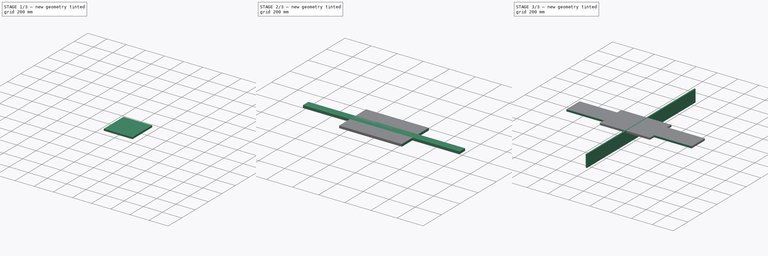
[diagram: build sequence overview — one tinted view per stage of 3, left to right]
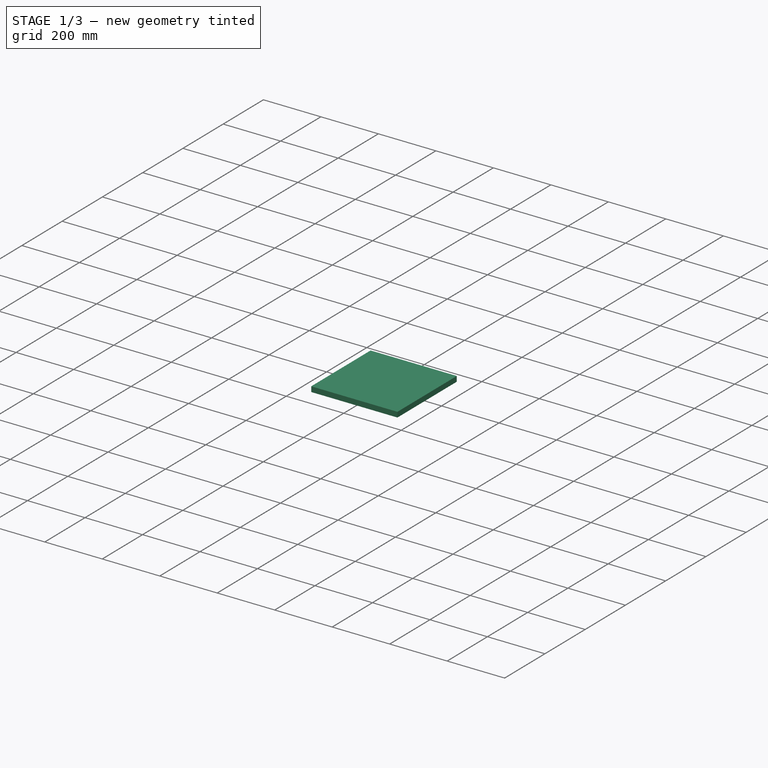
[diagram: stage 1 of 3 — iso view after this stage's code; geometry added in this stage tinted green]
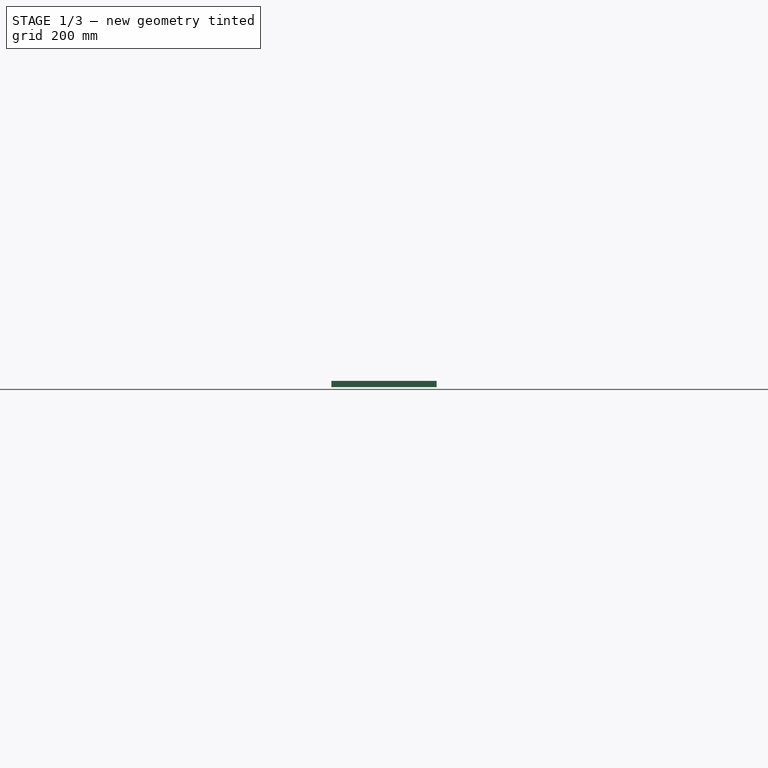
[diagram: stage 1 of 3 — front view after this stage's code; geometry added in this stage tinted green]
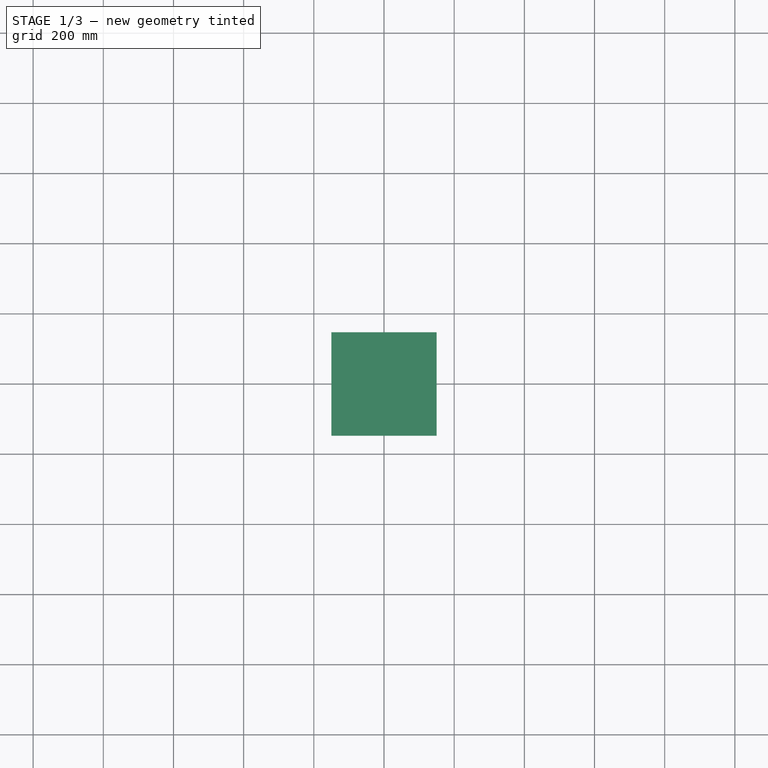
[diagram: stage 1 of 3 — top view after this stage's code; geometry added in this stage tinted green]
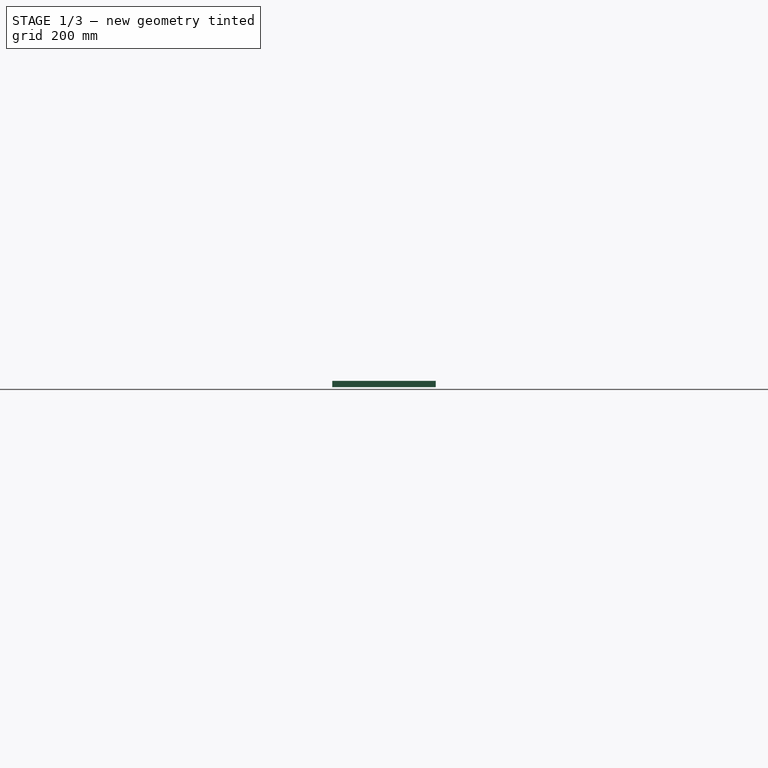
[diagram: stage 1 of 3 — right view after this stage's code; geometry added in this stage tinted green]
FCSTD DOCUMENT  (FreeCAD 0.19R24291 (Git))
Label: Scoreboard
License: All rights reserved
LicenseURL: http://en.wikipedia.org/wiki/All_rights_reserved
objects: App::Link×18, App::DocumentObjectGroup×8, Sketcher::SketchObject×6, PartDesign::Pad×6, PartDesign::Body×6, PartDesign::CoordinateSystem×1, App::FeaturePython×1, Part::Part2DObjectPython×1, Spreadsheet::Sheet×1, App::Part×1
note: 26 computed .brp shape members not serialized (recipe doc carries the construction recipe); baked Part::Feature solids carry a one-line shape summary decoded from their .brp
EXTERNAL_REF file=../DIGIT/7SegDigit.FCStd obj=Assembly

FEATURE [PartDesign::Body] Body003  label="PanelMiddle"
  Group = -> [Sketch003,Pad003]
  Origin = -> Origin006
  Placement = pos=(180,0,0) rot=(0,0,1;0rad)
  Tip = -> Pad003
  expr: .Placement.Base.x = Spreadsheet.Width / 2 - Spreadsheet.DigitWidth - (Spreadsheet.Width - 4 * Spreadsheet.DigitWidth) / 2
FEATURE [Sketcher::SketchObject] Sketch004
  FullyConstrained = true
  MapMode = 5
  Support = -> [XY_Plane007]
  expr: Constraints[9] = Spreadsheet.Width - 6 * Spreadsheet.DigitWidth
  expr: Constraints[10] = Spreadsheet.DigitHeigth
  sketch-geometry (4):
    g0: LineSegment StartX=-60 StartY=147.5 StartZ=0 EndX=60 EndY=147.5 EndZ=0
    g1: LineSegment StartX=60 StartY=147.5 StartZ=0 EndX=60 EndY=-147.5 EndZ=0
    g2: LineSegment StartX=60 StartY=-147.5 StartZ=0 EndX=-60 EndY=-147.5 EndZ=0
    g3: LineSegment StartX=-60 StartY=-147.5 StartZ=0 EndX=-60 EndY=147.5 EndZ=0
  constraints (11):
    c: Coincident(g0,g1)
    c: Coincident(g1,g2)
    c: Coincident(g2,g3)
    c: Coincident(g3,g0)
    c: Horizontal(g0)
    c: Horizontal(g2)
    c: Vertical(g1)
    c: Vertical(g3)
    c: Symmetric(g0,g1,g-1)
    c: DistanceX(g0,g0) = 120
    c: DistanceY(g1,g1) = 295
FEATURE [PartDesign::Pad] Pad004
  Direction = (1,1,1)
  Length = 18
  Length2 = 100
  Profile = -> Sketch004
  Type = 0
FEATURE [PartDesign::Body] Body004  label="PanelTop"
  Group = -> [Sketch004,Pad004]
  Origin = -> Origin007
  Placement = pos=(0,475,0) rot=(0,0,1;0rad)
  Tip = -> Pad004
  expr: .Placement.Base.y = Spreadsheet.DigitHeigth + Spreadsheet.TitleBarHeight
FEATURE [Sketcher::SketchObject] Sketch005
  FullyConstrained = true
  MapMode = 5
  Support = -> [XY_Plane009]
  expr: Constraints[9] = Spreadsheet.DigitHeigth
  expr: Constraints[10] = Spreadsheet.Width - 5 * Spreadsheet.DigitWidth
  sketch-geometry (4):
    g0: LineSegment StartX=-150 StartY=147.5 StartZ=0 EndX=150 EndY=147.5 EndZ=0
    g1: LineSegment StartX=150 StartY=147.5 StartZ=0 EndX=150 EndY=-147.5 EndZ=0
    g2: LineSegment StartX=150 StartY=-147.5 StartZ=0 EndX=-150 EndY=-147.5 EndZ=0
    g3: LineSegment StartX=-150 StartY=-147.5 StartZ=0 EndX=-150 EndY=147.5 EndZ=0
  constraints (11):
    c: Coincident(g0,g1)
    c: Coincident(g1,g2)
    c: Coincident(g2,g3)
    c: Coincident(g3,g0)
    c: Horizontal(g0)
    c: Horizontal(g2)
    c: Vertical(g1)
    c: Vertical(g3)
    c: Symmetric(g0,g1,g-1)
    c: DistanceY(g1,g1) = 295
    c: DistanceX(g0,g0) = 300
FEATURE [PartDesign::Pad] Pad005
  Direction = (1,1,1)
  Length = 18
  Length2 = 100
  Profile = -> Sketch005
  Type = 0
FEATURE [PartDesign::Body] Body006  label="PanelBottom"
  Group = -> [Sketch005,Pad005]
  Origin = -> Origin009
  Placement = pos=(-90,-475,0) rot=(0,0,1;0rad)
  Tip = -> Pad005
  expr: .Placement.Base.y = 0 - Spreadsheet.DigitHeigth - Spreadsheet.TitleBarHeight
  expr: .Placement.Base.x = Spreadsheet.Width / 2 - Spreadsheet.DigitWidth * 3 - (Spreadsheet.Width - 5 * Spreadsheet.DigitWidth) / 2
FEATURE [App::DocumentObjectGroup] Group002  label="Sides"
  Group = -> [Body,Link017]
FEATURE [App::DocumentObjectGroup] Group003  label="Bars"
  Group = -> [Link011,Body001,Body002,Link004]
FEATURE [App::DocumentObjectGroup] Group004  label="Panels"
  Group = -> [Body003,Body004,Body006]
FEATURE [App::DocumentObjectGroup] Group001  label="Frame"
  Group = -> [Group002,Group003,Group004]
FEATURE [App::Part] Assembly
  AssemblyType = Part::Link
  Group = -> [LCS_Origin,Variables,Constraints,Configurations,Link002,Link001,Link008,Link003,Link009,Link007,Link,Link005,Link006,Link010,Link016,Link015,Link013,Link012,Link014,Group,Group001,Body,Link017,Group002,Body001,Link004,Body002,Link011,Group003,Body004,Body003,Body006,Group004]
  Origin = -> Origin
  Type = Assembly

RESOLVED EXTERNAL PARTS (link-assembly join: the EXTERNAL_REF files above that resolve inside this repo's crawl, each included once):
---- part ../DIGIT/7SegDigit.FCStd = doc fcstd_d8d09d8c090b (89591 chars; too large to inline — full recipe in that document) ----
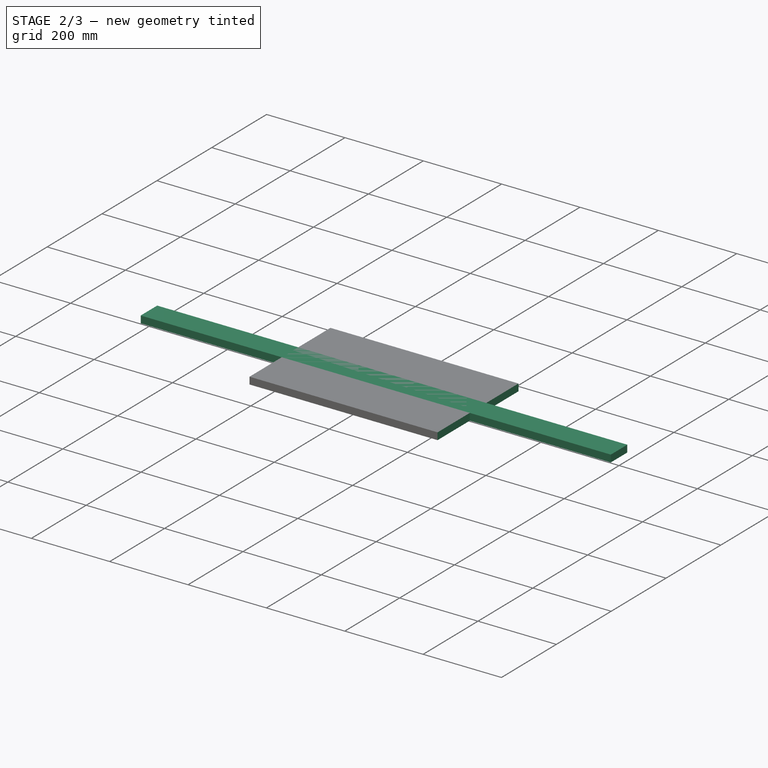
[diagram: stage 2 of 3 — iso view after this stage's code; geometry added in this stage tinted green]
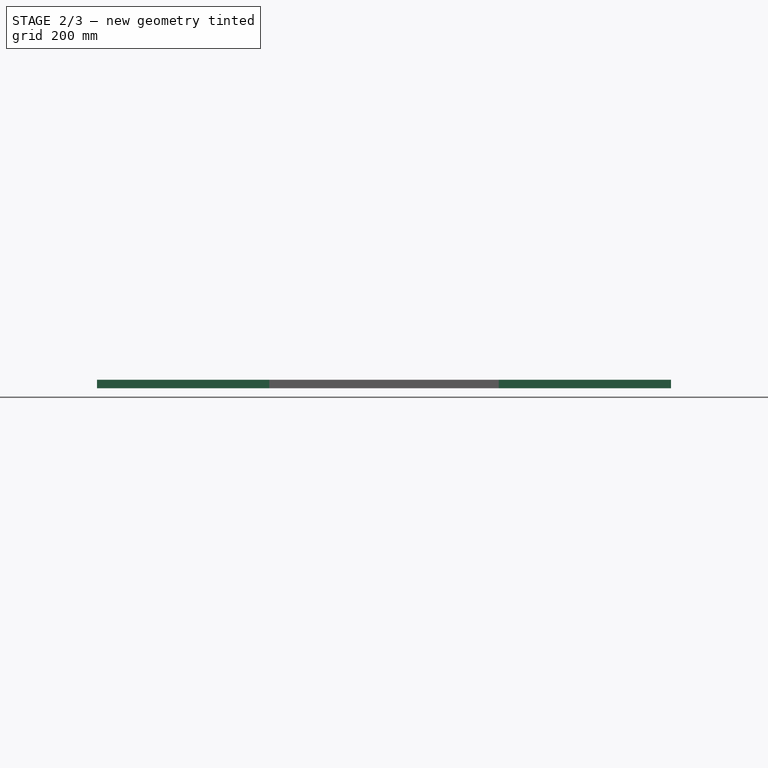
[diagram: stage 2 of 3 — front view after this stage's code; geometry added in this stage tinted green]
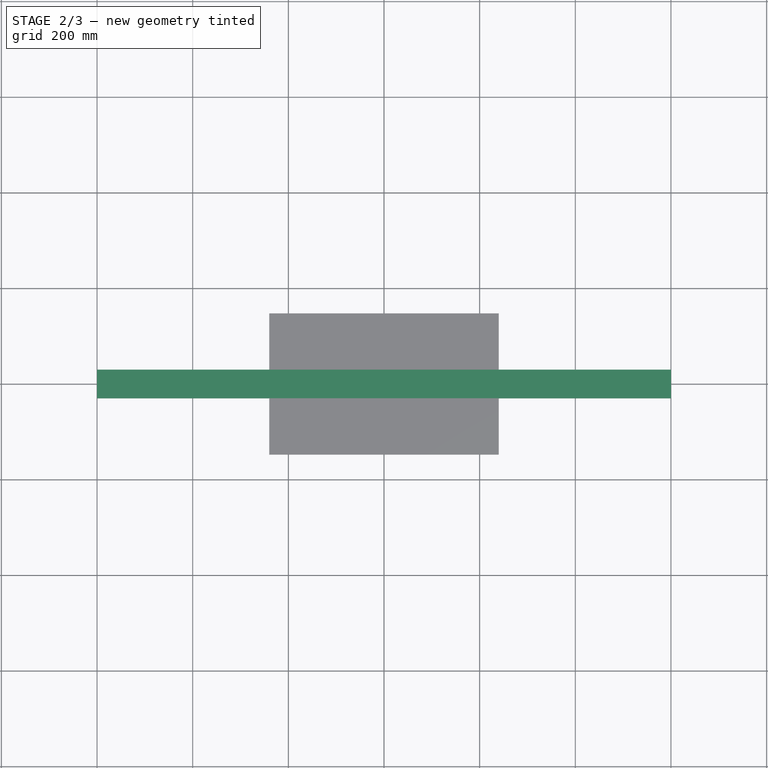
[diagram: stage 2 of 3 — top view after this stage's code; geometry added in this stage tinted green]
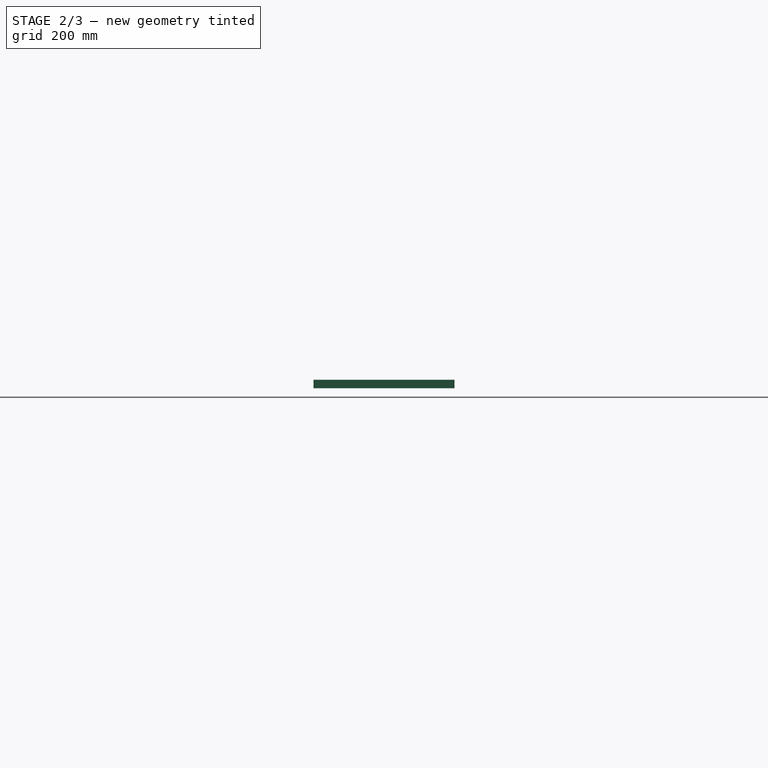
[diagram: stage 2 of 3 — right view after this stage's code; geometry added in this stage tinted green]
FEATURE [PartDesign::Body] Body001  label="TitleBarMiddle"
  Group = -> [Sketch001,Pad001]
  Origin = -> Origin003
  Placement = pos=(0,237.5,0) rot=(0,0,1;0rad)
  Tip = -> Pad001
  expr: .Placement.Base.y = Spreadsheet.DigitHeigth / 2 + Spreadsheet.TitleBarHeight / 2
FEATURE [App::Link] Link003  label="Digit003"
  LinkPlacement = pos=(510,0,0) rot=(0,0,1;0rad)
  LinkedObject = -> Link
  Placement = pos=(510,0,0) rot=(0,0,1;0rad)
  expr: .Placement.Base.x = Spreadsheet.Width / 2 - Spreadsheet.DigitWidth / 2
FEATURE [App::Link] Link004  label="TitleBarLower"
  LinkPlacement = pos=(0,-237.5,0) rot=(0,0,1;0rad)
  LinkedObject = -> Body001
  Placement = pos=(0,-237.5,0) rot=(0,0,1;0rad)
  expr: .Placement.Base.y = 0 - Spreadsheet.DigitHeigth / 2 - Spreadsheet.TitleBarHeight / 2
FEATURE [App::Link] Link005  label="Digit004"
  LinkPlacement = pos=(-510,475,0) rot=(0,0,1;0rad)
  LinkedObject = -> Link
  Placement = pos=(-510,475,0) rot=(0,0,1;0rad)
  expr: .Placement.Base.x = Spreadsheet.DigitWidth / 2 - Spreadsheet.Width / 2
  expr: .Placement.Base.y = Spreadsheet.DigitHeigth + Spreadsheet.TitleBarHeight
FEATURE [App::Link] Link006  label="Digit005"
  LinkPlacement = pos=(-330,475,0) rot=(0,0,1;0rad)
  LinkedObject = -> Link
  Placement = pos=(-330,475,0) rot=(0,0,1;0rad)
  expr: .Placement.Base.x = Spreadsheet.DigitWidth * 1.5 - Spreadsheet.Width / 2
  expr: .Placement.Base.y = Spreadsheet.DigitHeigth + Spreadsheet.TitleBarHeight
FEATURE [App::Link] Link007  label="Digit006"
  LinkPlacement = pos=(-150,475,0) rot=(0,0,1;0rad)
  LinkedObject = -> Link
  Placement = pos=(-150,475,0) rot=(0,0,1;0rad)
  expr: .Placement.Base.x = Spreadsheet.DigitWidth * 2.5 - Spreadsheet.Width / 2
  expr: .Placement.Base.y = Spreadsheet.DigitHeigth + Spreadsheet.TitleBarHeight
FEATURE [App::Link] Link008  label="Digit007"
  LinkPlacement = pos=(510,475,0) rot=(0,0,1;0rad)
  LinkedObject = -> Link
  Placement = pos=(510,475,0) rot=(0,0,1;0rad)
  expr: .Placement.Base.x = Spreadsheet.Width / 2 - Spreadsheet.DigitWidth / 2
  expr: .Placement.Base.y = Spreadsheet.DigitHeigth + Spreadsheet.TitleBarHeight
FEATURE [App::Link] Link009  label="Digit008"
  LinkPlacement = pos=(330,475,0) rot=(0,0,1;0rad)
  LinkedObject = -> Link
  Placement = pos=(330,475,0) rot=(0,0,1;0rad)
  expr: .Placement.Base.y = Spreadsheet.DigitHeigth + Spreadsheet.TitleBarHeight
  expr: .Placement.Base.x = Spreadsheet.Width / 2 - Spreadsheet.DigitWidth * 1.5
FEATURE [App::Link] Link010  label="Digit009"
  LinkPlacement = pos=(150,475,0) rot=(0,0,1;0rad)
  LinkedObject = -> Link
  Placement = pos=(150,475,0) rot=(0,0,1;0rad)
  expr: .Placement.Base.y = Spreadsheet.DigitHeigth + Spreadsheet.TitleBarHeight
  expr: .Placement.Base.x = Spreadsheet.Width / 2 - 2.5 * Spreadsheet.DigitWidth
FEATURE [App::Link] Link011  label="TitleBarTop"
  LinkPlacement = pos=(0,712.5,0) rot=(0,0,1;0rad)
  LinkedObject = -> Body001
  Placement = pos=(0,712.5,0) rot=(0,0,1;0rad)
  expr: .Placement.Base.y = Spreadsheet.TitleBarHeight * 1.5 + Spreadsheet.DigitHeigth * 1.5
FEATURE [App::Link] Link012  label="Digit010"
  LinkPlacement = pos=(-510,-475,0) rot=(0,0,1;0rad)
  LinkedObject = -> Link
  Placement = pos=(-510,-475,0) rot=(0,0,1;0rad)
  expr: .Placement.Base.y = 0 - Spreadsheet.TitleBarHeight - Spreadsheet.DigitHeigth
  expr: .Placement.Base.x = Spreadsheet.DigitWidth / 2 - Spreadsheet.Width / 2
FEATURE [App::Link] Link013  label="Digit011"
  LinkPlacement = pos=(-330,-475,0) rot=(0,0,1;0rad)
  LinkedObject = -> Link
  Placement = pos=(-330,-475,0) rot=(0,0,1;0rad)
  expr: .Placement.Base.y = 0 - Spreadsheet.TitleBarHeight - Spreadsheet.DigitHeigth
  expr: .Placement.Base.x = Spreadsheet.DigitWidth * 1.5 - Spreadsheet.Width / 2
FEATURE [App::Link] Link014  label="Digit012"
  LinkPlacement = pos=(510,-475,0) rot=(0,0,1;0rad)
  LinkedObject = -> Link
  Placement = pos=(510,-475,0) rot=(0,0,1;0rad)
  expr: .Placement.Base.y = 0 - Spreadsheet.TitleBarHeight - Spreadsheet.DigitHeigth
  expr: .Placement.Base.x = Spreadsheet.Width / 2 - Spreadsheet.DigitWidth * 0.5
FEATURE [App::Link] Link015  label="Digit013"
  LinkPlacement = pos=(330,-475,0) rot=(0,0,1;0rad)
  LinkedObject = -> Link
  Placement = pos=(330,-475,0) rot=(0,0,1;0rad)
  expr: .Placement.Base.y = 0 - Spreadsheet.TitleBarHeight - Spreadsheet.DigitHeigth
  expr: .Placement.Base.x = Spreadsheet.Width / 2 - Spreadsheet.DigitWidth * 1.5
FEATURE [App::Link] Link016  label="Digit014"
  LinkPlacement = pos=(150,-475,0) rot=(0,0,1;0rad)
  LinkedObject = -> Link
  Placement = pos=(150,-475,0) rot=(0,0,1;0rad)
  expr: .Placement.Base.x = Spreadsheet.Width / 2 - Spreadsheet.DigitWidth * 2.5
  expr: .Placement.Base.y = 0 - Spreadsheet.TitleBarHeight - Spreadsheet.DigitHeigth
FEATURE [Sketcher::SketchObject] Sketch002
  FullyConstrained = true
  MapMode = 5
  Support = -> [XY_Plane004]
  expr: Constraints[9] = Spreadsheet.Width
  expr: Constraints[10] = Spreadsheet.BottomBarHeight
  sketch-geometry (4):
    g0: LineSegment StartX=-600 StartY=30 StartZ=0 EndX=600 EndY=30 EndZ=0
    g1: LineSegment StartX=600 StartY=30 StartZ=0 EndX=600 EndY=-30 EndZ=0
    g2: LineSegment StartX=600 StartY=-30 StartZ=0 EndX=-600 EndY=-30 EndZ=0
    g3: LineSegment StartX=-600 StartY=-30 StartZ=0 EndX=-600 EndY=30 EndZ=0
  constraints (11):
    c: Coincident(g0,g1)
    c: Coincident(g1,g2)
    c: Coincident(g2,g3)
    c: Coincident(g3,g0)
    c: Horizontal(g0)
    c: Horizontal(g2)
    c: Vertical(g1)
    c: Vertical(g3)
    c: Symmetric(g1,g0,g-1)
    c: DistanceX(g0,g0) = 1200
    c: DistanceY(g1,g1) = 60
FEATURE [PartDesign::Pad] Pad002
  Direction = (1,1,1)
  Length = 18
  Length2 = 100
  Profile = -> Sketch002
  Type = 0
FEATURE [PartDesign::Body] Body  label="SideLeft"
  Group = -> [Sketch,Pad]
  Origin = -> Origin005
  Placement = pos=(-612,0,0) rot=(0,0,1;0rad)
  Tip = -> Pad
  expr: .Placement.Base.x = -Spreadsheet.Width / 2 - 12
FEATURE [App::Link] Link017  label="SideRigth"
  LinkPlacement = pos=(600,0,0) rot=(0,0,1;0rad)
  LinkedObject = -> Body
  Placement = pos=(600,0,0) rot=(0,0,1;0rad)
  expr: .Placement.Base.x = Spreadsheet.Width / 2
FEATURE [App::DocumentObjectGroup] Group  label="Digits"
  Group = -> [Link,Link001,Link002,Link003,Link005,Link006,Link007,Link008,Link009,Link010,Link012,Link013,Link014,Link015,Link016]
FEATURE [Sketcher::SketchObject] Sketch003
  FullyConstrained = true
  MapMode = 5
  Support = -> [XY_Plane006]
  expr: Constraints[9] = Spreadsheet.Width - Spreadsheet.DigitWidth * 4
  expr: Constraints[10] = Spreadsheet.DigitHeigth
  sketch-geometry (4):
    g0: LineSegment StartX=-240 StartY=147.5 StartZ=0 EndX=240 EndY=147.5 EndZ=0
    g1: LineSegment StartX=240 StartY=147.5 StartZ=0 EndX=240 EndY=-147.5 EndZ=0
    g2: LineSegment StartX=240 StartY=-147.5 StartZ=0 EndX=-240 EndY=-147.5 EndZ=0
    g3: LineSegment StartX=-240 StartY=-147.5 StartZ=0 EndX=-240 EndY=147.5 EndZ=0
  constraints (11):
    c: Coincident(g0,g1)
    c: Coincident(g1,g2)
    c: Coincident(g2,g3)
    c: Coincident(g3,g0)
    c: Horizontal(g0)
    c: Horizontal(g2)
    c: Vertical(g1)
    c: Vertical(g3)
    c: Symmetric(g0,g1,g-1)
    c: DistanceX(g0,g0) = 480
    c: DistanceY(g1,g1) = 295
FEATURE [PartDesign::Pad] Pad003
  Direction = (1,1,1)
  Length = 18
  Length2 = 100
  Profile = -> Sketch003
  Type = 0
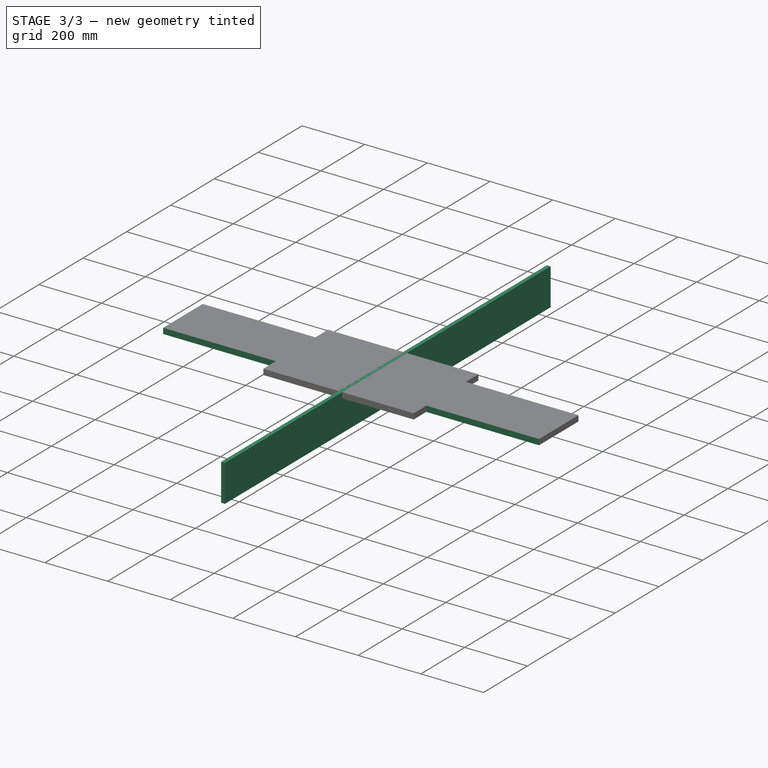
[diagram: stage 3 of 3 — iso view after this stage's code; geometry added in this stage tinted green]
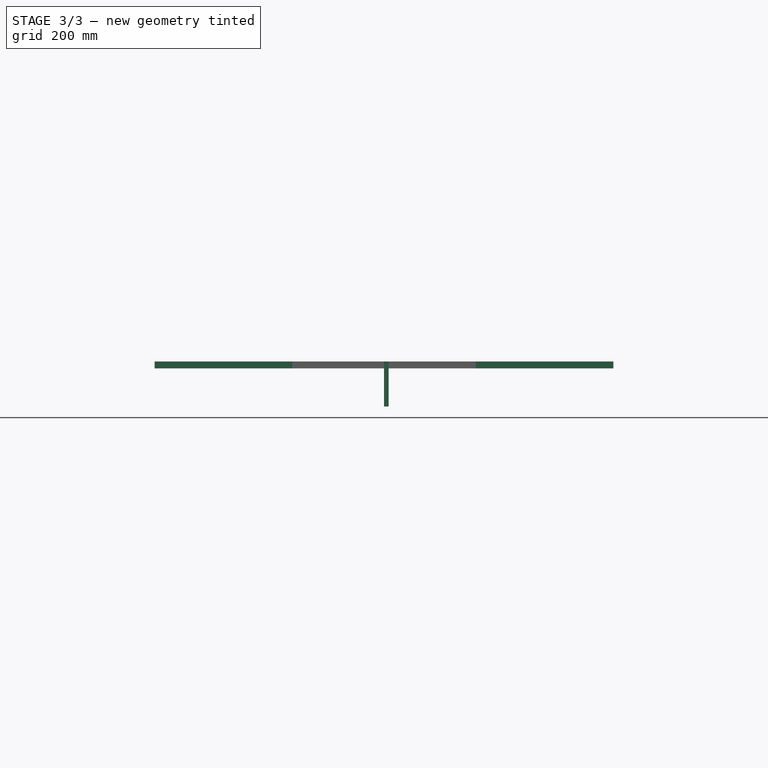
[diagram: stage 3 of 3 — front view after this stage's code; geometry added in this stage tinted green]
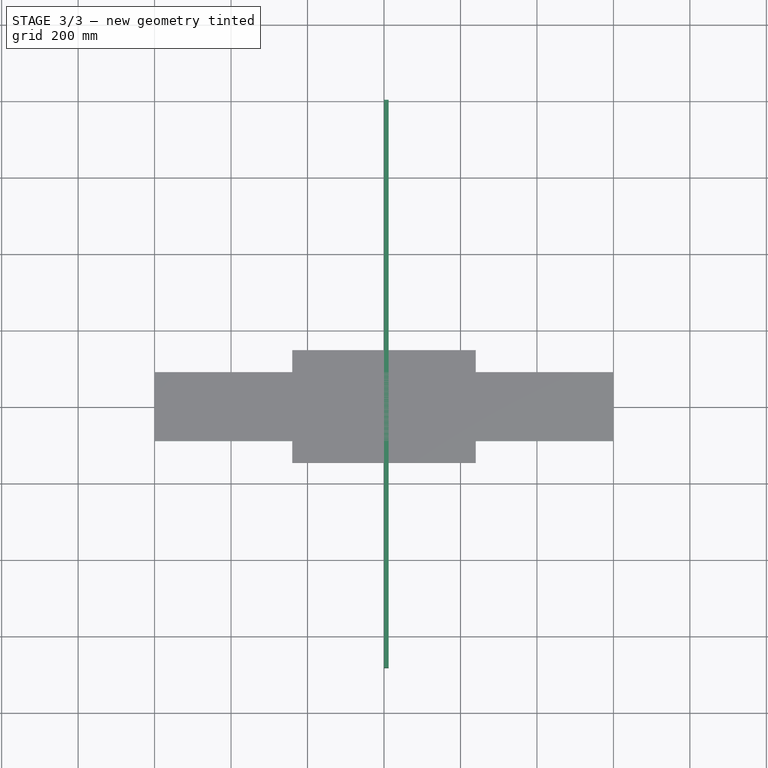
[diagram: stage 3 of 3 — top view after this stage's code; geometry added in this stage tinted green]
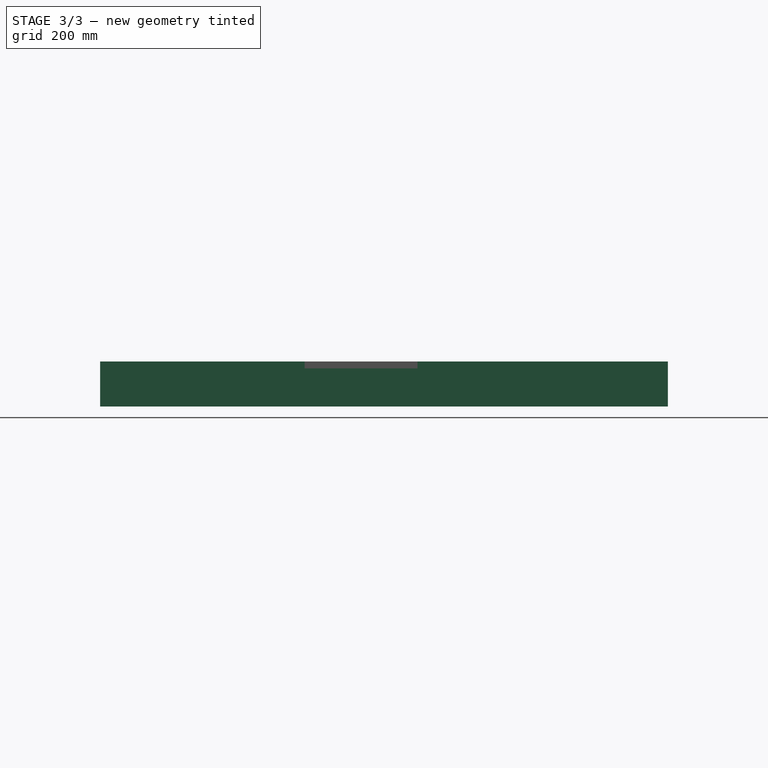
[diagram: stage 3 of 3 — right view after this stage's code; geometry added in this stage tinted green]
FEATURE [App::DocumentObjectGroup] Parts
FEATURE [PartDesign::CoordinateSystem] LCS_Origin
  AttacherType = Attacher::AttachEngine3D
  MapMode = 2
  Support = -> [X_Axis]
FEATURE [App::FeaturePython] Variables  # WARN: FeaturePython — macro-defined, semantics opaque (R4)
  Type = App::PropertyContainer
FEATURE [App::DocumentObjectGroup] Constraints
FEATURE [App::DocumentObjectGroup] Configurations
FEATURE [Sketcher::SketchObject] Sketch001
  FullyConstrained = true
  MapMode = 5
  Support = -> [XY_Plane003]
  expr: Constraints[9] = Spreadsheet.Width
  expr: Constraints[10] = Spreadsheet.TitleBarHeight
  sketch-geometry (4):
    g0: LineSegment StartX=-600 StartY=-90 StartZ=0 EndX=600 EndY=-90 EndZ=0
    g1: LineSegment StartX=600 StartY=-90 StartZ=0 EndX=600 EndY=90 EndZ=0
    g2: LineSegment StartX=600 StartY=90 StartZ=0 EndX=-600 EndY=90 EndZ=0
    g3: LineSegment StartX=-600 StartY=90 StartZ=0 EndX=-600 EndY=-90 EndZ=0
  constraints (11):
    c: Coincident(g0,g1)
    c: Coincident(g1,g2)
    c: Coincident(g2,g3)
    c: Coincident(g3,g0)
    c: Horizontal(g0)
    c: Horizontal(g2)
    c: Vertical(g1)
    c: Vertical(g3)
    c: Symmetric(g0,g1,g-1)
    c: DistanceX(g2,g2) = 1200
    c: DistanceY(g1,g1) = 180
FEATURE [App::Link] Link  label="Digit"
  LinkPlacement = pos=(-510,0,0) rot=(0,0,1;0rad)
  LinkedObject = -> <external ../DIGIT/7SegDigit.FCStd>#Assembly
  Placement = pos=(-510,0,0) rot=(0,0,1;0rad)
  expr: .Placement.Base.x = Spreadsheet.DigitWidth / 2 - Spreadsheet.Width / 2
FEATURE [App::Link] Link001  label="Digit001"
  LinkPlacement = pos=(-330,0,0) rot=(0,0,1;0rad)
  LinkedObject = -> Link
  Placement = pos=(-330,0,0) rot=(0,0,1;0rad)
  expr: .Placement.Base.x = Spreadsheet.DigitWidth * 1.5 - Spreadsheet.Width / 2
FEATURE [App::Link] Link002  label="Digit002"
  LinkPlacement = pos=(-150,0,0) rot=(0,0,1;0rad)
  LinkedObject = -> Link
  Placement = pos=(-150,0,0) rot=(0,0,1;0rad)
  expr: .Placement.Base.x = Spreadsheet.DigitWidth * 2.5 - Spreadsheet.Width / 2
FEATURE [PartDesign::Pad] Pad001
  Direction = (1,1,1)
  Length = 18
  Length2 = 100
  Profile = -> Sketch001
  Type = 0
FEATURE [PartDesign::Body] Body002  label="BottomBar"
  Group = -> [Sketch002,Pad002]
  Origin = -> Origin004
  Placement = pos=(0,-652.5,0) rot=(0,0,1;0rad)
  Tip = -> Pad002
  expr: .Placement.Base.y = 0 - Spreadsheet.TitleBarHeight - Spreadsheet.DigitHeigth * 1.5 - Spreadsheet.BottomBarHeight / 2
FEATURE [Part::Part2DObjectPython] ShapeString  # Draft 2D object (typed FeaturePython)
  FontFile = <userpath>/Documents/GitHub/Cricket-Scoreboard/CAD/SCOREBOARD/HussarBoldWebEdition-xq5O.otf
  Placement = pos=(-580,650,18.01) rot=(0,0,1;0rad)
  Size = 50
  String = BAT A
  Tracking = 0
FEATURE [Spreadsheet::Sheet] Spreadsheet
  cells = A1=DigitWidth; B1(DigitWidth)=180; C1=Includes toleraece of 0.75mm all around; A2=DigitHeight; B2(DigitHeigth)=295; C2=Includes toleraece of 0.75mm all around; A3=Width; B3(Width)=1200; A4=TitleBarHeight; B4(TitleBarHeight)=180; A5=BottomBarHeight; B5(BottomBarHeight)=60; A6=Depth; B6(Depth)=100
FEATURE [Sketcher::SketchObject] Sketch
  FullyConstrained = true
  MapMode = 5
  Placement = pos=(0,0,0) rot=(0.57735,0.57735,0.57735;2.0944rad)
  Support = -> [YZ_Plane005]
  expr: Constraints[8] = Spreadsheet.DigitHeigth * 1.5 + Spreadsheet.TitleBarHeight + Spreadsheet.BottomBarHeight
  expr: Constraints[9] = Spreadsheet.DigitHeigth * 1.5 + Spreadsheet.TitleBarHeight * 2
  expr: Constraints[10] = Spreadsheet.Depth + 18
  sketch-geometry (4):
    g0: LineSegment StartX=-682.5 StartY=18 StartZ=0 EndX=802.5 EndY=18 EndZ=0
    g1: LineSegment StartX=802.5 StartY=18 StartZ=0 EndX=802.5 EndY=-100 EndZ=0
    g2: LineSegment StartX=802.5 StartY=-100 StartZ=0 EndX=-682.5 EndY=-100 EndZ=0
    g3: LineSegment StartX=-682.5 StartY=-100 StartZ=0 EndX=-682.5 EndY=18 EndZ=0
  constraints (12):
    c: Coincident(g0,g1)
    c: Coincident(g1,g2)
    c: Coincident(g2,g3)
    c: Coincident(g3,g0)
    c: Horizontal(g0)
    c: Horizontal(g2)
    c: Vertical(g1)
    c: Vertical(g3)
    c: DistanceX(g0,g-1) = 682.5
    c: DistanceX(g-1,g0) = 802.5
    c: DistanceY(g2,g0) = 118
    c: DistanceY(g-1,g0) = 18
FEATURE [PartDesign::Pad] Pad
  Direction = (1,1,1)
  Length = 12
  Length2 = 100
  Placement = pos=(0,0,0) rot=(0.57735,0.57735,0.57735;2.0944rad)
  Profile = -> Sketch
  Type = 0
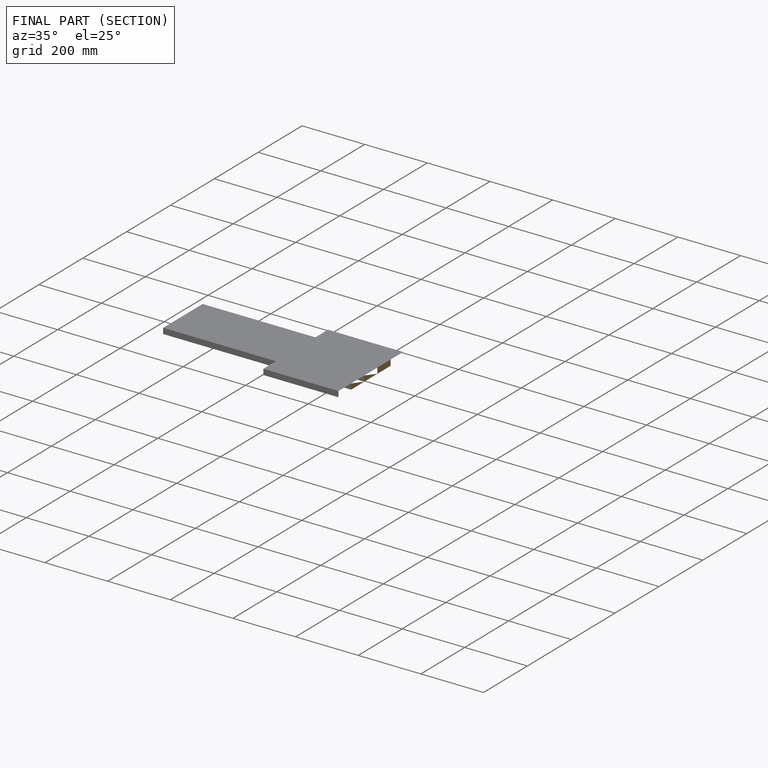
[diagram: finished part — half-section view (interior)]
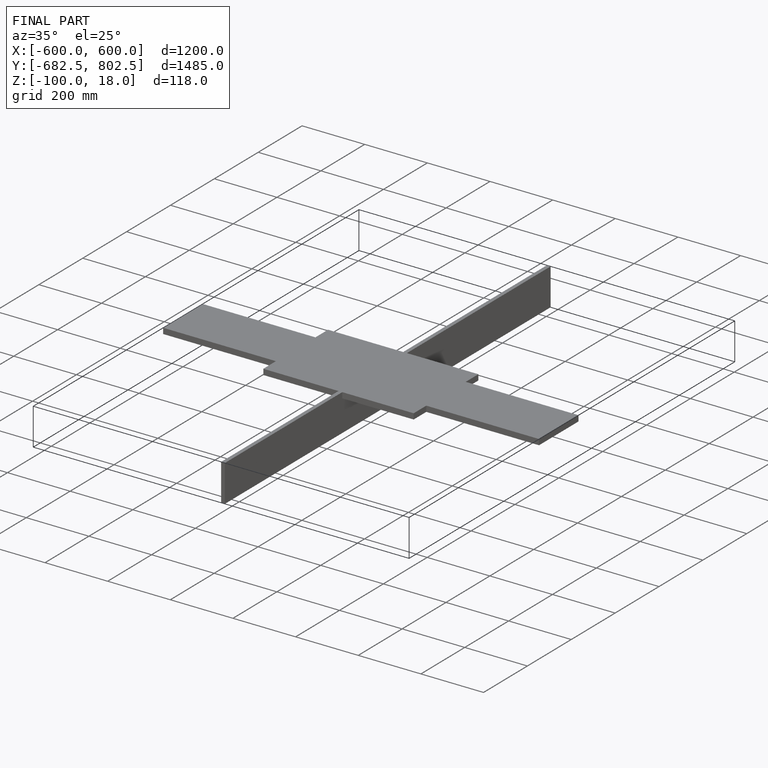
[diagram: finished part — iso view with bounding-box wireframe]
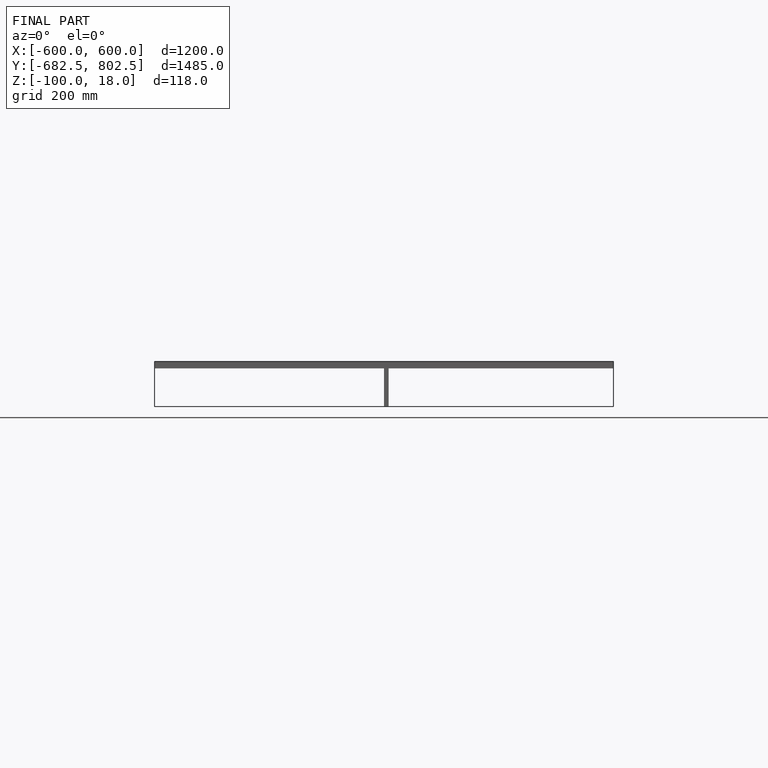
[diagram: finished part — front view with bounding-box wireframe]
